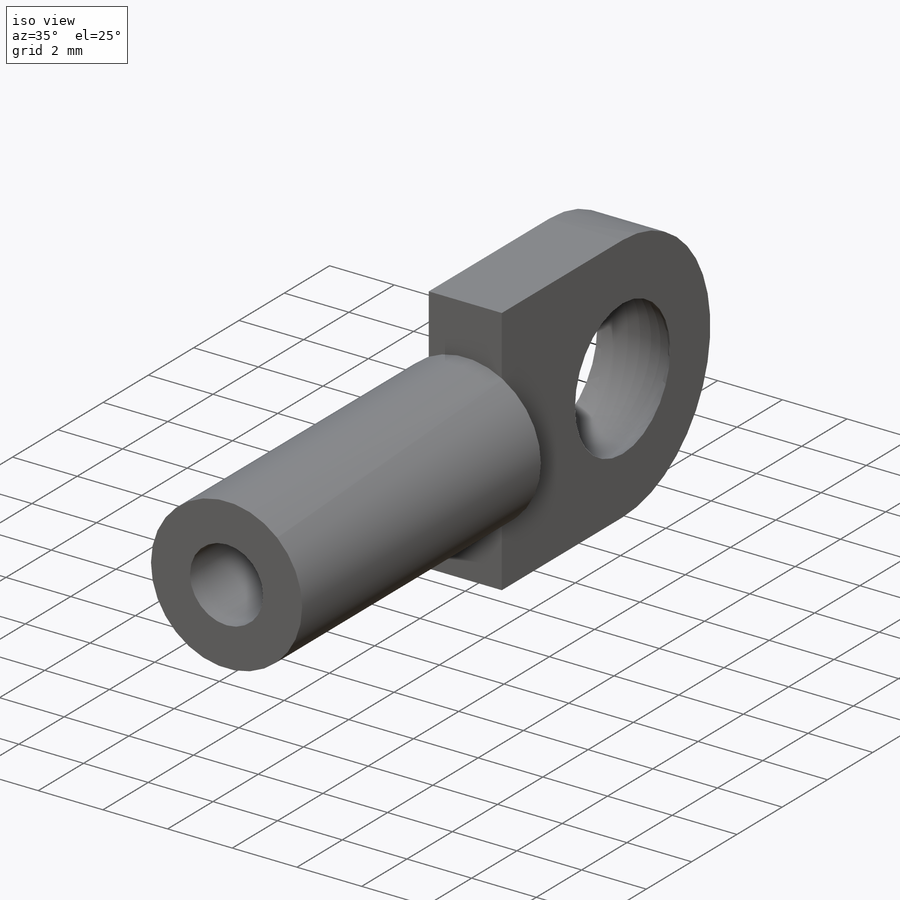
[diagram: iso view]
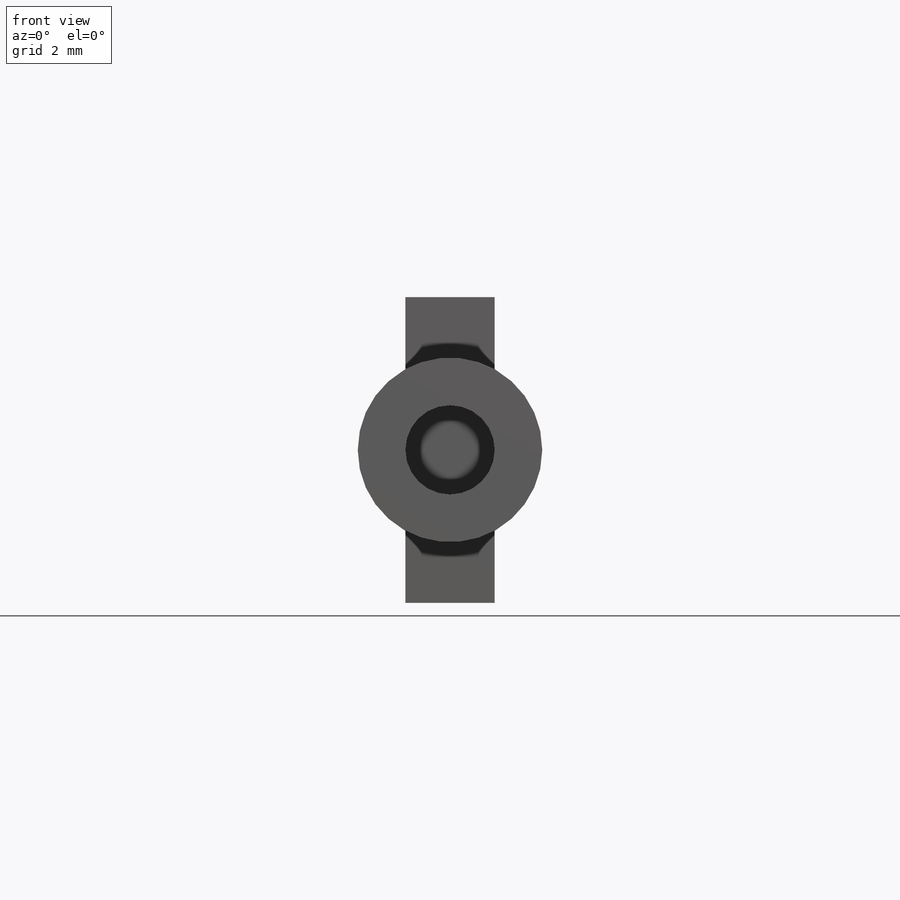
[diagram: front view]
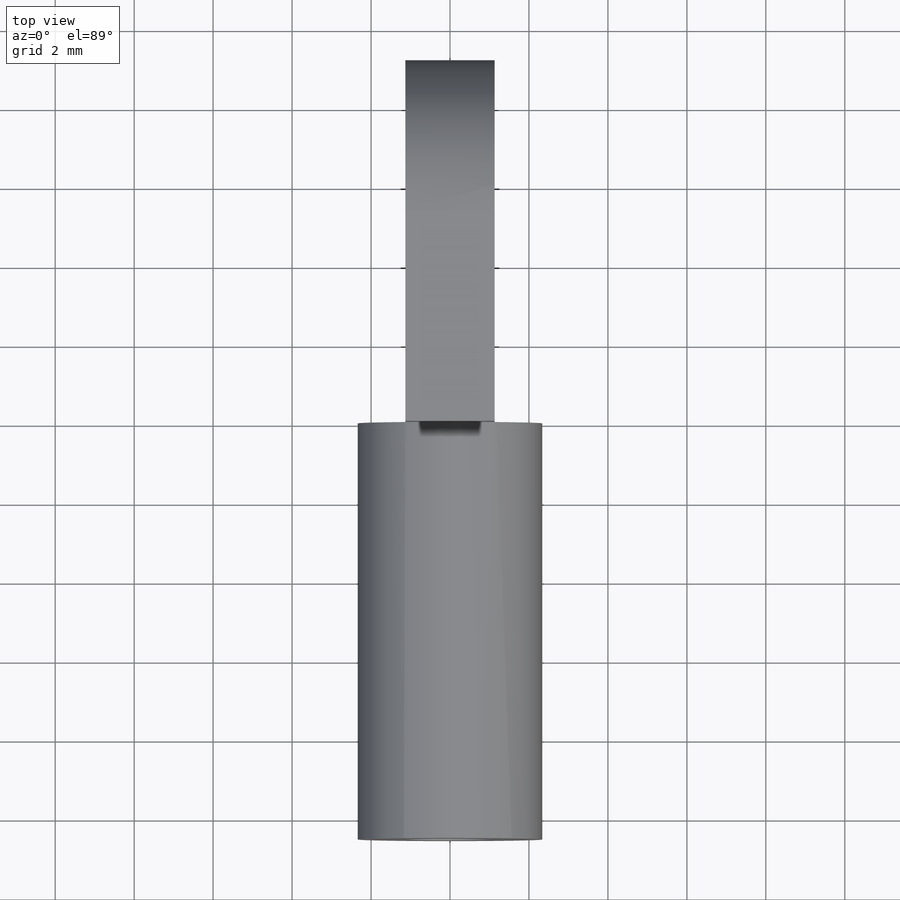
[diagram: top view]
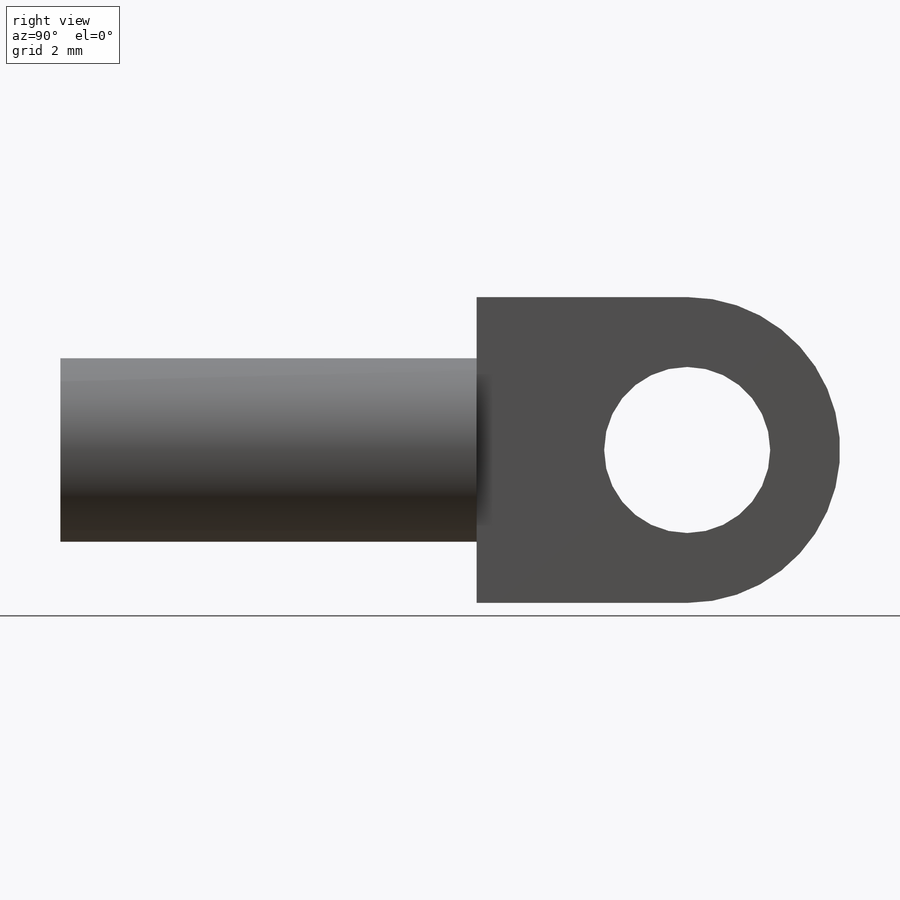
[diagram: right view]
SOLIDWORKS PART (.sldprt)
format: sldprt  version: not decoded by parser v0  size: 181,760 bytes
history: native  units: mm
features: sketch x5, extrude x2, material x1, cut_revolve x1, cut_extrude x1 (+12 scaffold rows collapsed)
feature tree (22):
  scaffold x12  (default folders/planes/origin — collapsed)
  material  "Nylon 6/10"
  sketch  "Sketch1"  dims[D1=~36.103962mm]
  extrude  "Extrude1"  Depth=10.541mm
  sketch  "Sketch2"  dims[D1=3.8735mm]
  extrude  "Extrude2"  Depth=1.1303mm
  sketch  "Sketch3"  dims[D1=~1.682612mm]
  cut_revolve  "Cut-Revolve1"  Angle=360deg
  sketch  "Sketch4"  dims[D1=~1.218395mm]
  cut_extrude  "Extrude3"  Depth=8.001mm
  sketch  "Sketch6"
decode coverage: 8 of 9 modeling features carry decoded parameters
note: ~ marks probable driven/reference dimensions
note: suppression state not decoded; provenance and decode notes live in map.json
